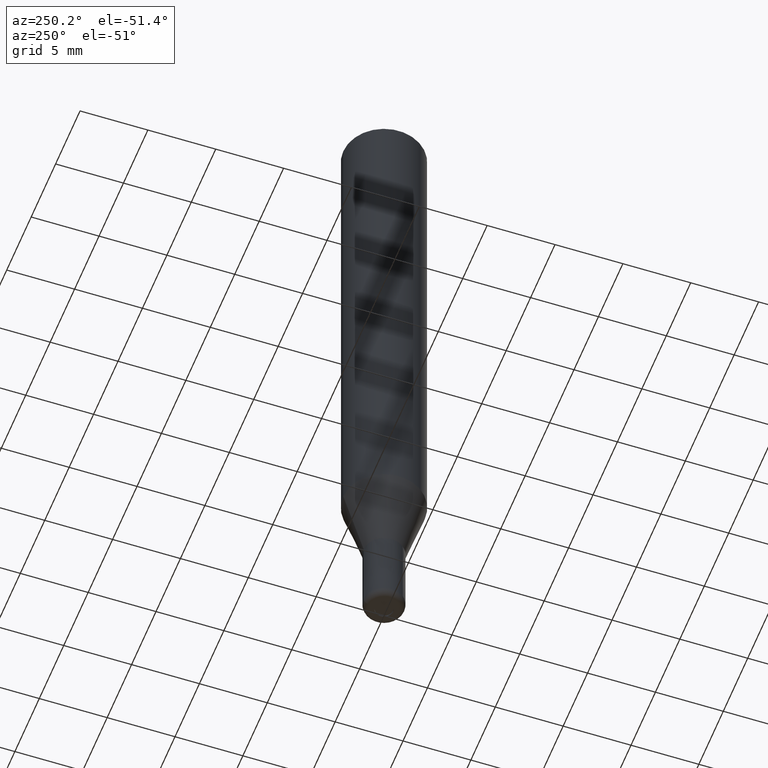
[diagram: clean part render]
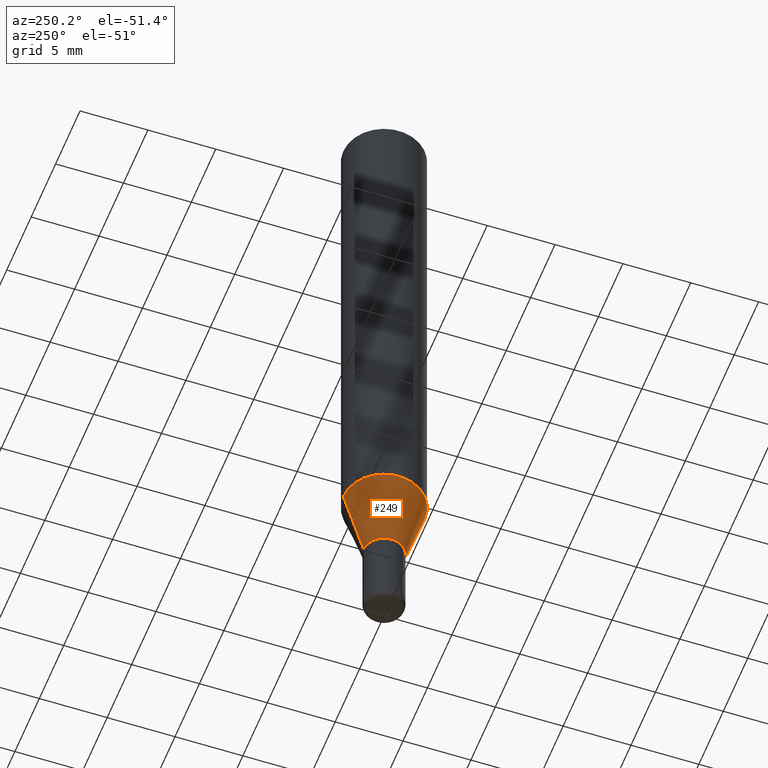
[diagram: same view with one face highlighted and labeled with its STEP entity id]
A machine part, auxiliary view. The second image highlights one B-rep face of the part: STEP entity #249.
In plain terms, the highlighted conical surface has half-angle 16 deg.
Its self-contained STEP definition (entity closure, byte-faithful):
#117=EDGE_CURVE('',#217,#245,#304,.T.);
#121=EDGE_CURVE('',#281,#275,#309,.T.);
#179=EDGE_CURVE('',#245,#275,#375,.T.);
#217=VERTEX_POINT('',#421);
#223=EDGE_CURVE('',#281,#217,#427,.T.);
#245=VERTEX_POINT('',#455);
#249=ADVANCED_FACE('',(#459),#460,.T.);
#275=VERTEX_POINT('',#486);
#281=VERTEX_POINT('',#492);
#304=CIRCLE('',#508,2.99995);
#309=CIRCLE('',#514,1.49995);
#375=LINE('',#600,#601);
#421=CARTESIAN_POINT('',(3.67375783114944E-016,-2.99995,-38.769));
#427=LINE('',#655,#656);
#455=CARTESIAN_POINT('',(0.0,2.99995,-38.769));
#459=FACE_OUTER_BOUND('',#692,.T.);
#460=CONICAL_SURFACE('',#693,2.24995,0.279258842899557);
#486=CARTESIAN_POINT('',(0.0,1.49995,-44.0));
#492=CARTESIAN_POINT('',(1.83684830041587E-016,-1.49995,-44.0));
#508=AXIS2_PLACEMENT_3D('',#747,#748,#749);
#514=AXIS2_PLACEMENT_3D('',#758,#759,#760);
#600=CARTESIAN_POINT('',(-2.75530306578266E-016,2.24995,-41.3845));
#601=VECTOR('',#852,1.0);
#655=CARTESIAN_POINT('',(2.75530306578266E-016,-2.24995,-41.3845));
#656=VECTOR('',#908,1.0);
#692=EDGE_LOOP('',(#959,#960,#961,#962));
#693=AXIS2_PLACEMENT_3D('',#963,#964,#965);
#747=CARTESIAN_POINT('',(0.0,0.0,-38.769));
#748=DIRECTION('',(0.0,0.0,-1.0));
#749=DIRECTION('',(0.0,1.0,0.0));
#758=CARTESIAN_POINT('',(0.0,0.0,-44.0));
#759=DIRECTION('',(0.0,0.0,-1.0));
#760=DIRECTION('',(0.0,1.0,0.0));
#852=DIRECTION('',(3.37554511665356E-017,-0.275643279664313,-0.961259997282682));
#908=DIRECTION('',(3.37554511665357E-017,-0.275643279664313,0.961259997282682));
#959=ORIENTED_EDGE('',*,*,#179,.T.);
#960=ORIENTED_EDGE('',*,*,#121,.F.);
#961=ORIENTED_EDGE('',*,*,#223,.T.);
#962=ORIENTED_EDGE('',*,*,#117,.T.);
#963=CARTESIAN_POINT('',(0.0,0.0,-41.3845));
#964=DIRECTION('',(-0.0,-0.0,1.0));
#965=DIRECTION('',(0.0,1.0,0.0));